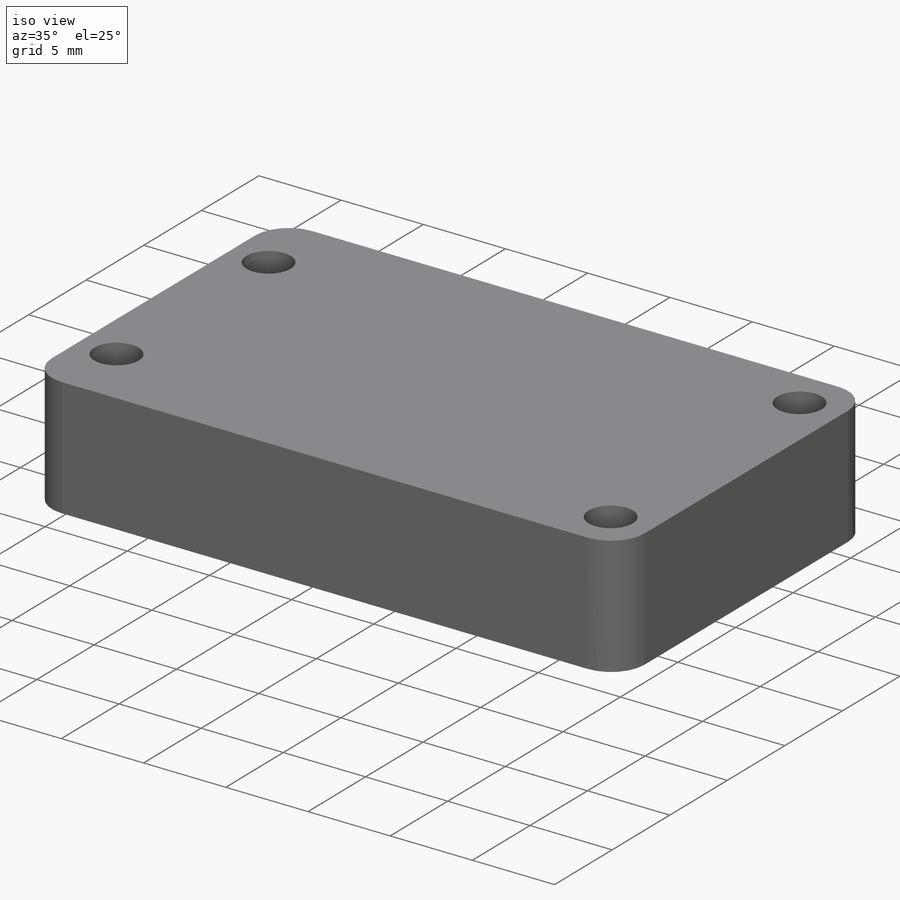
[diagram: iso view]
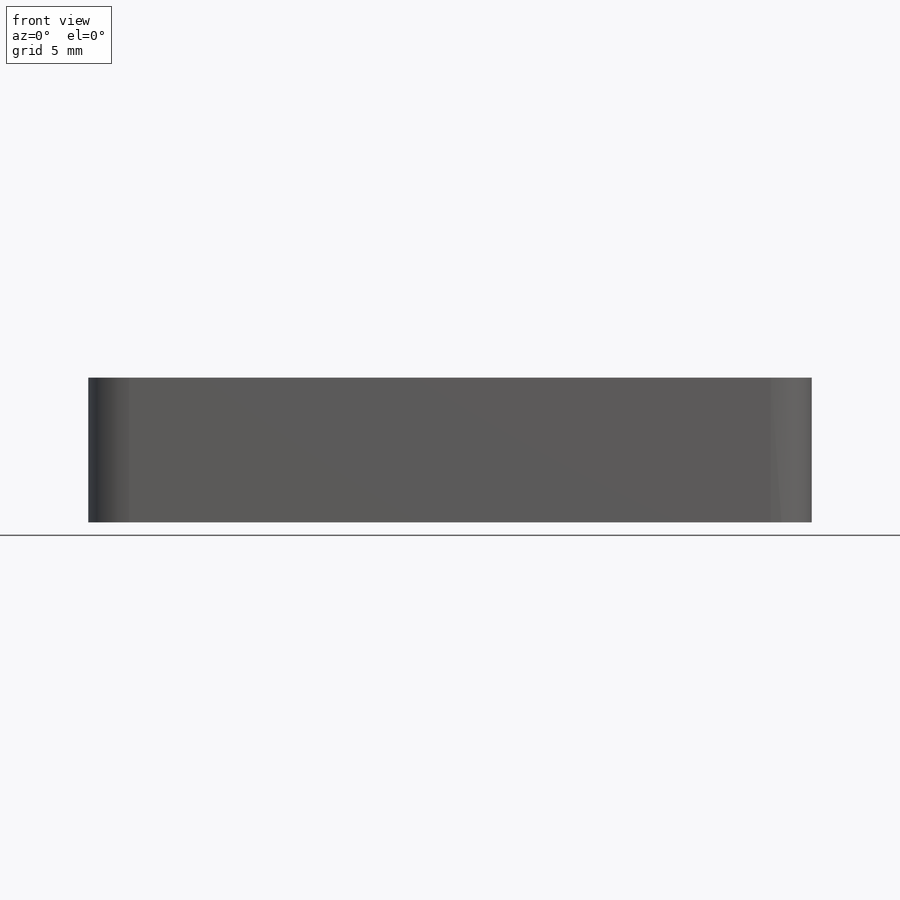
[diagram: front view]
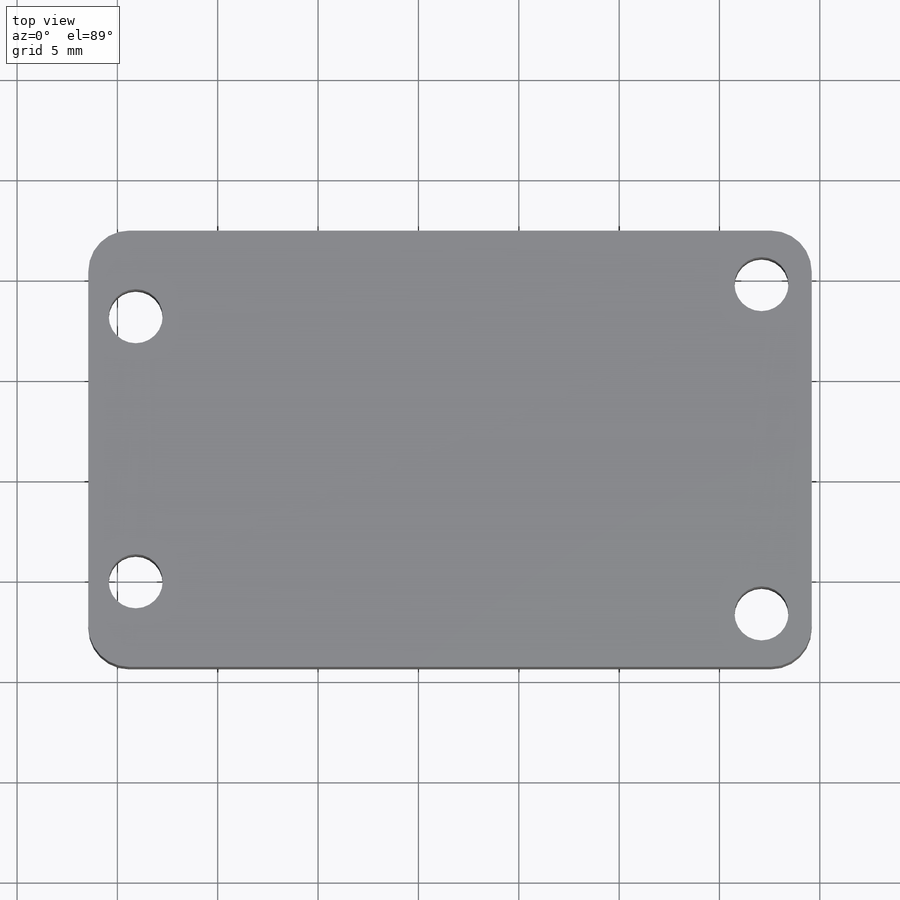
[diagram: top view]
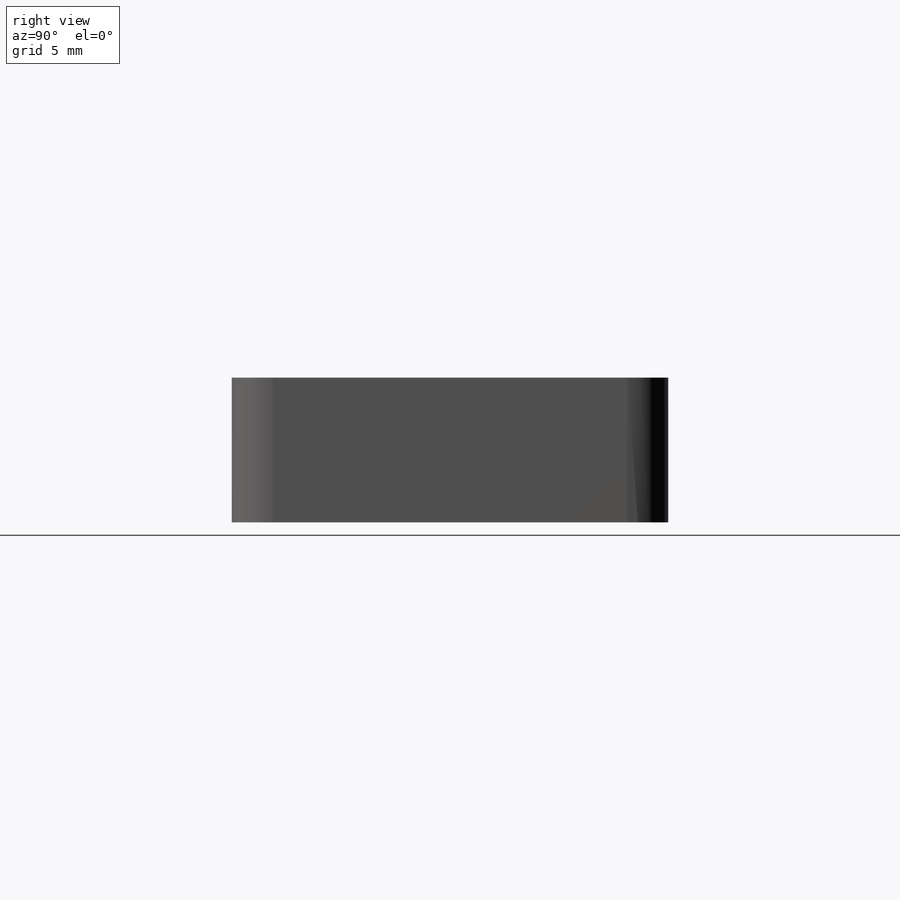
[diagram: right view]
SOLIDWORKS PART (.sldprt)
format: sldprt  version: not decoded by parser v0  size: 150,528 bytes
history: native  units: mm
features: sketch x3, material x1, extrude x1, cut_extrude x1, fillet x1 (+12 scaffold rows collapsed)
feature tree (19):
  scaffold x12  (default folders/planes/origin — collapsed)
  material  "Material <not specified>"
  sketch  "Sketch1"  dims[D1=36.0426mm D2=21.7424mm]
  extrude  "Boss-Extrude1"  Depth=7.2136mm
  sketch  "Sketch2"  dims[c1.D1=2.6924mm c1.D2=2.6924mm c1.D3=2.6924mm c2.D1=2.5019mm c2.D2=2.667mm c2.D3=2.3622mm c2.D4=4.2672mm]
  cut_extrude  "Cut-Extrude1"  Depth=7.2136mm
  fillet  "Fillet1"  Radius=2.032mm
  sketch  "Sketch3"
decode coverage: 5 of 6 modeling features carry decoded parameters
note: suppression state not decoded; provenance and decode notes live in map.json
